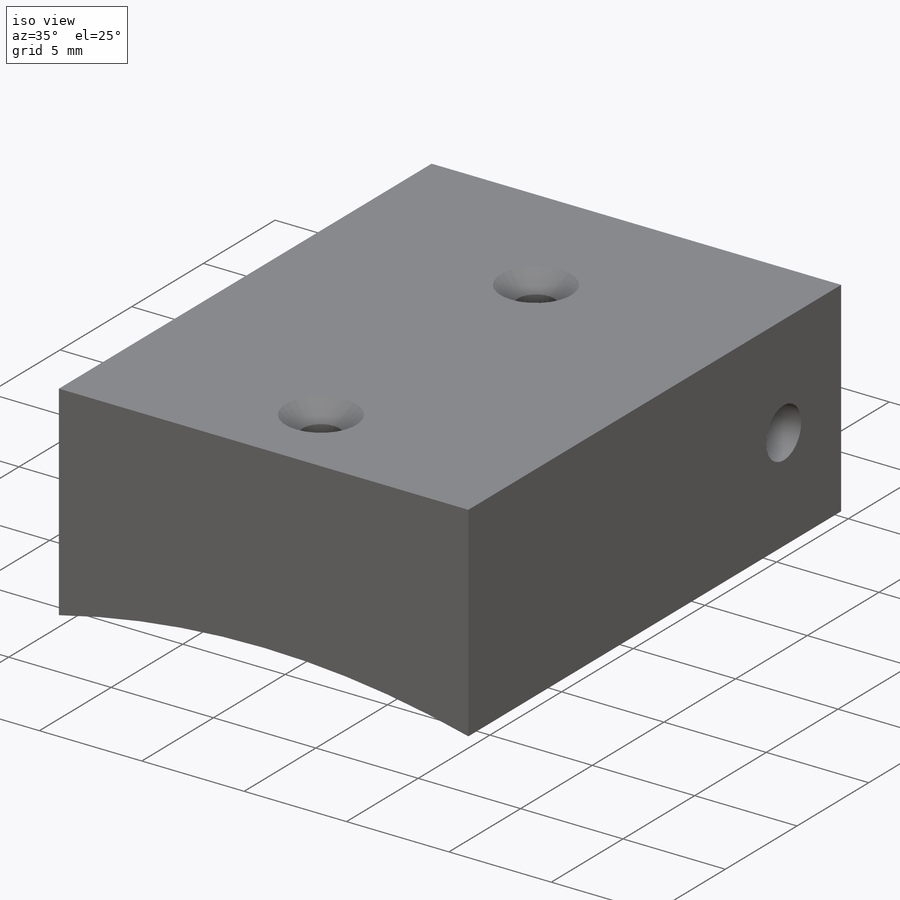
[diagram: iso view]
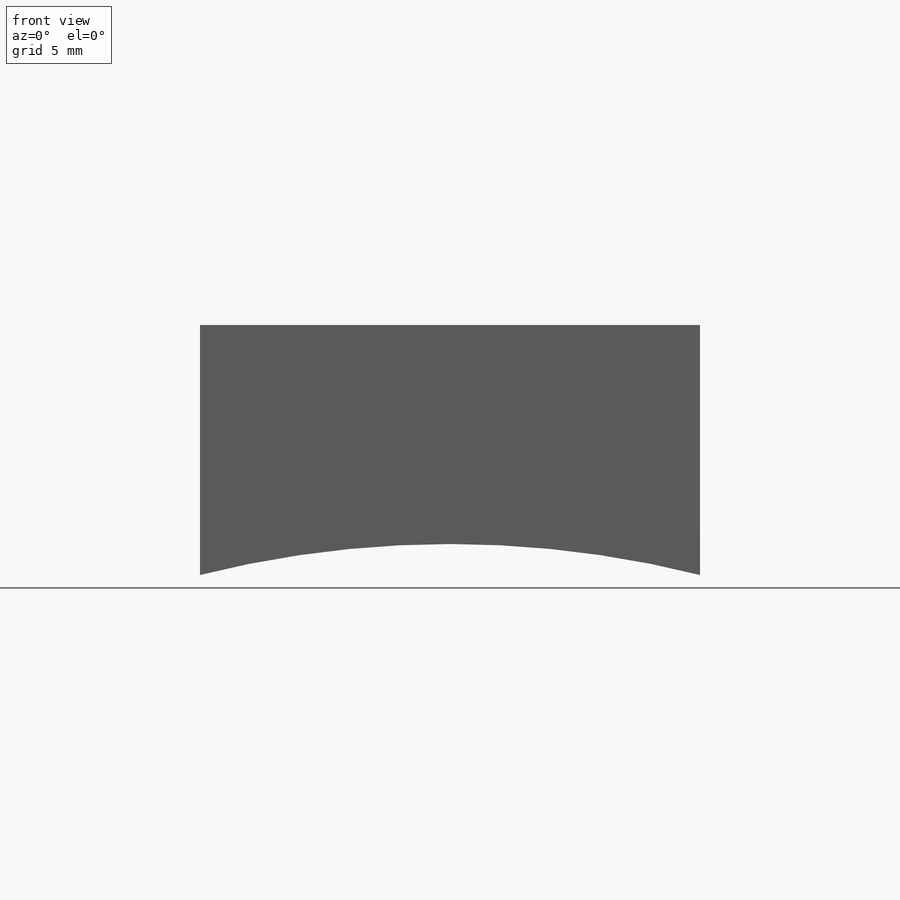
[diagram: front view]
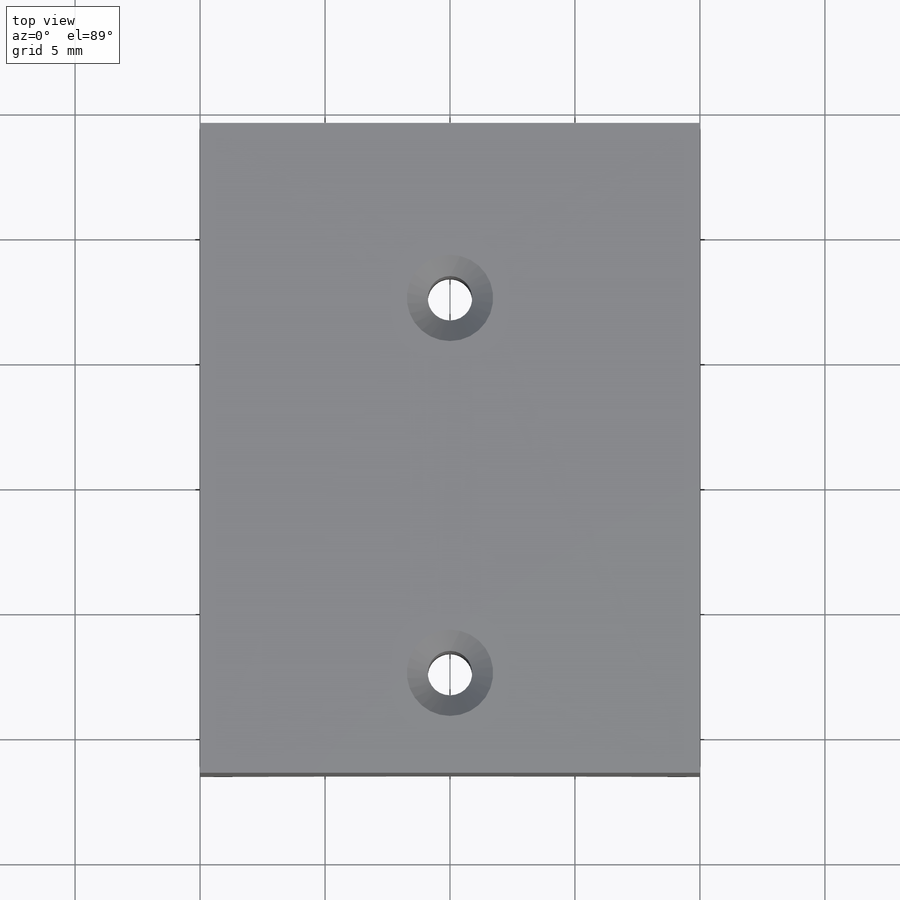
[diagram: top view]
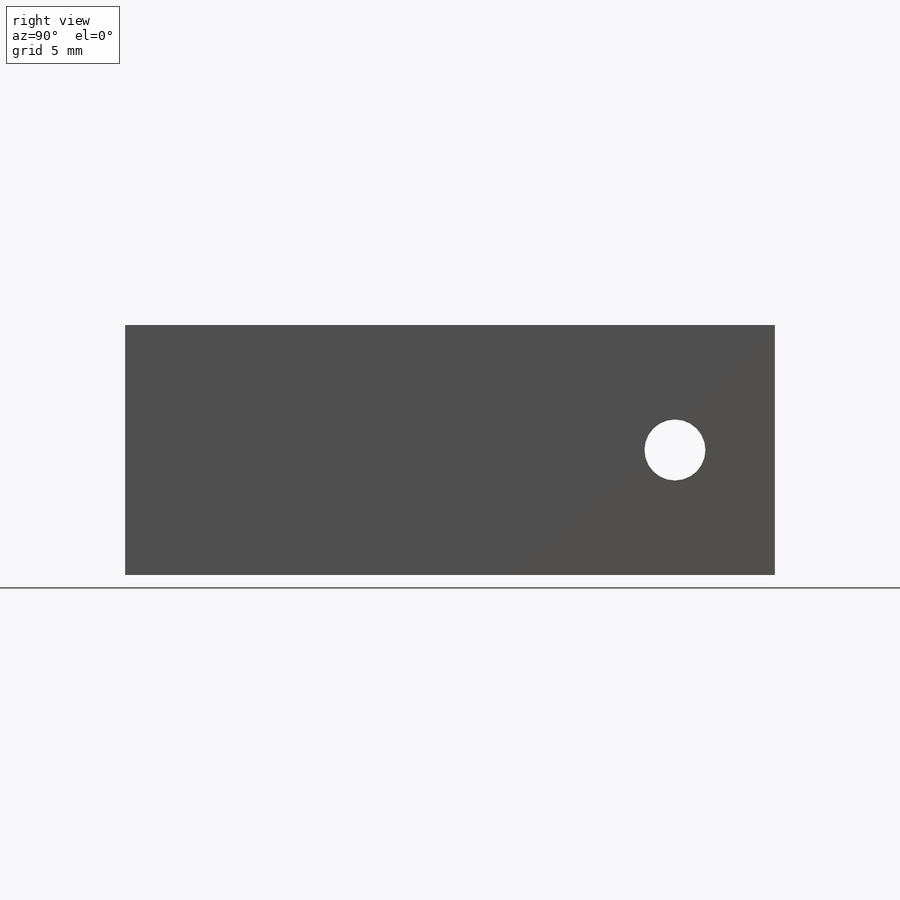
[diagram: right view]
SOLIDWORKS PART (.sldprt)
format: sldprt  version: not decoded by parser v0  size: 259,584 bytes
history: native  units: mm
features: sketch x6, extrude x2, hole x2, thread x2, material x1 (+11 scaffold rows collapsed)
feature tree (24):
  scaffold x11  (default folders/planes/origin — collapsed)
  material  "6061-T6 (SS)"
  sketch  "Sketch1"  dims[D1=41.016mm D2=20.0mm D3=10.0mm]
  extrude  "Boss-Extrude1"  Depth=23mm
  hole  "#2-56 Tapped Hole3"  Diameter=1.778mm Depth=10mm
  sketch  "Sketch9"  dims[D1=4.0mm D2=15.0mm]
  sketch  "Sketch8"  dims[hole-wizard template sketch: 54 standard entries collapsed; hole parameters kept: c17.Thru Tap Drill Dia.=1.778mm c17.Thru Tap Drill Depth=10.0mm c17.Near C'Sink Dia.=3.4544mm c17.D4=~3.666174mm c17.Near C'Sink Angle=90.0deg]
  thread  "Hole Thread5"  Diameter=2.1844mm  [1 undecoded]
  thread  "Hole Thread7"  Diameter=2.1844mm  [1 undecoded]
  sketch  "Sketch5"  dims[D1=0.0mm]
  extrude  "Boss-Extrude2"  Depth=3mm
  hole  "#2 Clearance Hole1"  Diameter=2.4384mm Depth=20mm
  sketch  "Sketch13"  dims[c1.D1=20.0mm c1.D2=12.0mm c2.D1=22.0mm]
  sketch  "Sketch12"  dims[hole-wizard template sketch: 60 standard entries collapsed; hole parameters kept: c18.Thru Hole Depth=20.0mm]
decode coverage: 12 of 12 modeling features carry decoded parameters
note: ~ marks probable driven/reference dimensions
note: 2 parameter values undecoded
note: suppression state not decoded; provenance and decode notes live in map.json
